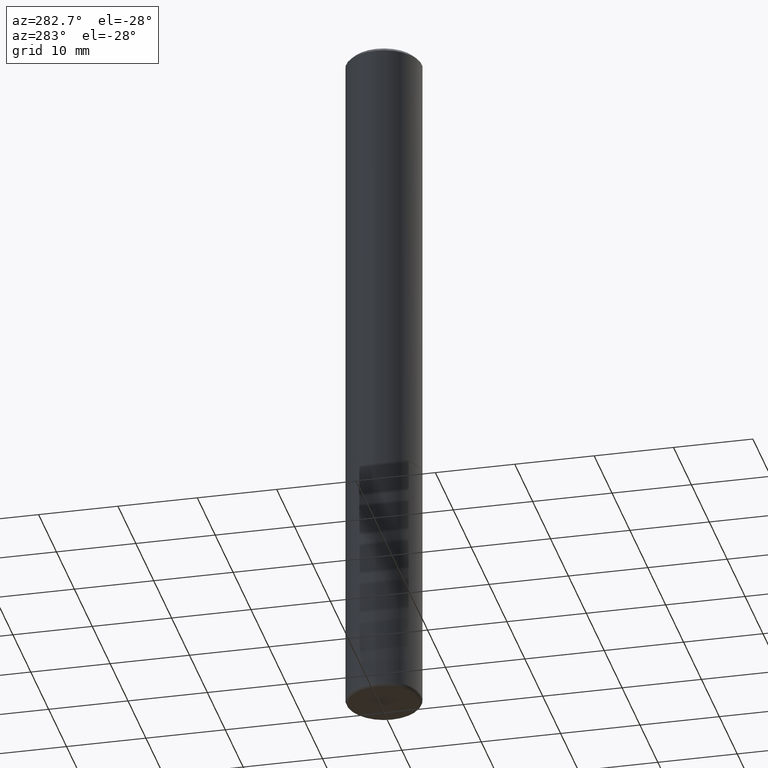
[diagram: clean part render]
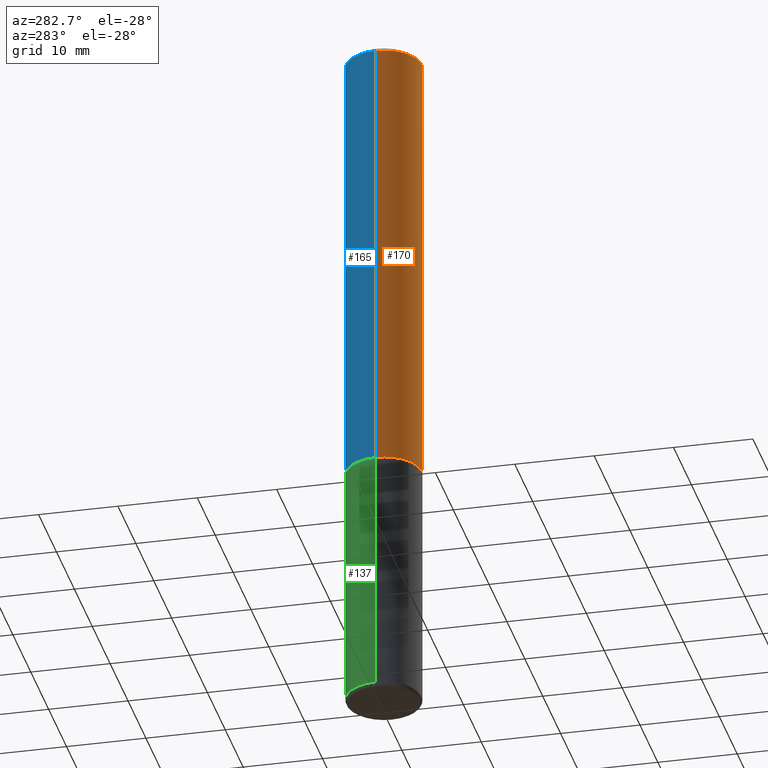
[diagram: same view with three faces highlighted in distinct colors, each labeled with its STEP entity id]
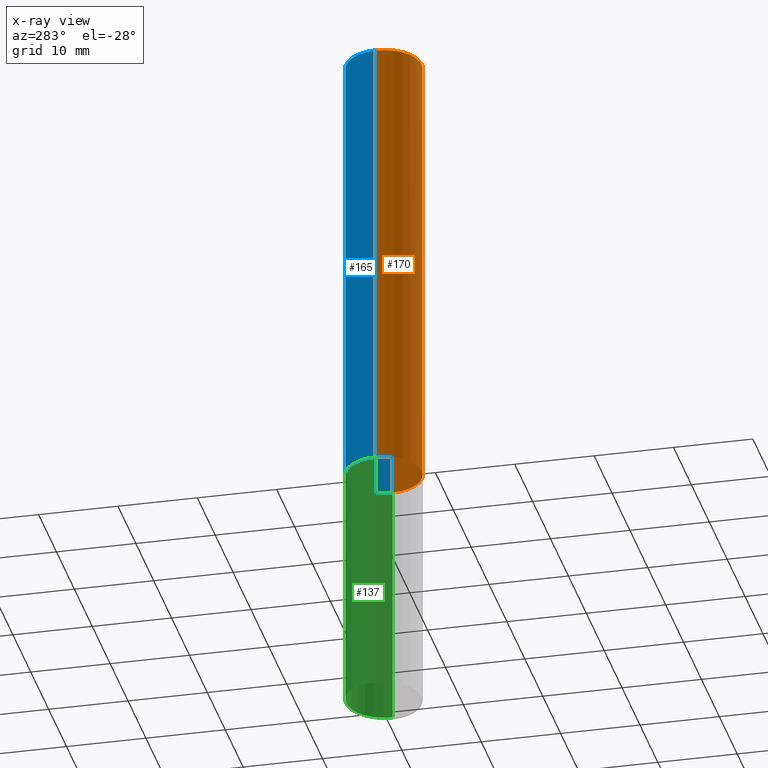
[diagram: x-ray of the same camera — body ghosted, the three highlighted faces saturated]
A machine part, auxiliary view with three faces highlighted in distinct colors.
The next image is the same camera in x-ray (body ghosted, the three faces saturated) — at least one of them is partly hidden behind the body in this view.
Their STEP definitions:

[orange] entity #170 — the highlighted cylindrical surface (partial cylindrical patch) has radius 4.7625 mm, axis along (-0, 0, 1).
#23 = LINE ( 'NONE', #268, #202 ) ;
#28 = DIRECTION ( 'NONE',  ( -2.445468806185136597E-29, 3.491481338843145583E-15, 1.000000000000000000 ) ) ;
#35 = VERTEX_POINT ( 'NONE', #175 ) ;
#39 = DIRECTION ( 'NONE',  ( 1.000000000000000000, -6.982962677686267499E-15, 4.876176775795935232E-29 ) ) ;
#69 = ORIENTED_EDGE ( 'NONE', *, *, #148, .T. ) ;
#92 = DIRECTION ( 'NONE',  ( -2.445468806185136877E-29, 3.491481338843145188E-15, 1.000000000000000000 ) ) ;
#117 = FACE_OUTER_BOUND ( 'NONE', #303, .T. ) ;
#119 = CARTESIAN_POINT ( 'NONE',  ( 0.000000000000000000, 0.000000000000000000, 0.000000000000000000 ) ) ;
#120 = ORIENTED_EDGE ( 'NONE', *, *, #158, .T. ) ;
#126 = ORIENTED_EDGE ( 'NONE', *, *, #293, .F. ) ;
#127 = EDGE_CURVE ( 'NONE', #147, #319, #178, .T. ) ;
#147 = VERTEX_POINT ( 'NONE', #439 ) ;
#148 = EDGE_CURVE ( 'NONE', #35, #284, #357, .T. ) ;
#158 = EDGE_CURVE ( 'NONE', #284, #319, #23, .T. ) ;
#170 = ADVANCED_FACE ( 'NONE', ( #117 ), #277, .T. ) ;
#175 = CARTESIAN_POINT ( 'NONE',  ( -0.1875000000000000278, -2.628817949367352449E-15, -2.248999999999999666 ) ) ;
#178 = CIRCLE ( 'NONE', #264, 0.1874999999999993061 ) ;
#201 = CARTESIAN_POINT ( 'NONE',  ( -0.1874999999999996392, 1.332267629550185285E-15, -9.223003294227931175E-30 ) ) ;
#202 = VECTOR ( 'NONE', #92, 39.37007874015748143 ) ;
#245 = AXIS2_PLACEMENT_3D ( 'NONE', #119, #455, #39 ) ;
#247 = DIRECTION ( 'NONE',  ( -2.445468806185136877E-29, 3.491481338843145188E-15, 1.000000000000000000 ) ) ;
#264 = AXIS2_PLACEMENT_3D ( 'NONE', #490, #449, #408 ) ;
#268 = CARTESIAN_POINT ( 'NONE',  ( 0.1874999999999996392, -1.309305502066172642E-15, 9.142831454617361395E-30 ) ) ;
#275 = CARTESIAN_POINT ( 'NONE',  ( 5.499859345110371740E-29, -7.852341531058233864E-15, -2.248999999999999666 ) ) ;
#277 = CYLINDRICAL_SURFACE ( 'NONE', #245, 0.1874999999999996392 ) ;
#284 = VERTEX_POINT ( 'NONE', #379 ) ;
#293 = EDGE_CURVE ( 'NONE', #35, #147, #380, .T. ) ;
#303 = EDGE_LOOP ( 'NONE', ( #126, #69, #120, #482 ) ) ;
#319 = VERTEX_POINT ( 'NONE', #492 ) ;
#357 = CIRCLE ( 'NONE', #425, 0.1875000000000000278 ) ;
#379 = CARTESIAN_POINT ( 'NONE',  ( 0.1875000000000000278, -9.161647033124408872E-15, -2.248999999999999666 ) ) ;
#380 = LINE ( 'NONE', #201, #447 ) ;
#408 = DIRECTION ( 'NONE',  ( 1.000000000000000000, -6.982962677686265922E-15, 0.000000000000000000 ) ) ;
#425 = AXIS2_PLACEMENT_3D ( 'NONE', #275, #28, #445 ) ;
#439 = CARTESIAN_POINT ( 'NONE',  ( -0.1874999999999993061, 1.239475875289307174E-15, -0.02000000000000007327 ) ) ;
#445 = DIRECTION ( 'NONE',  ( 1.000000000000000000, -6.982962677686266711E-15, 0.000000000000000000 ) ) ;
#447 = VECTOR ( 'NONE', #247, 39.37007874015748143 ) ;
#449 = DIRECTION ( 'NONE',  ( -2.445468806185136597E-29, 3.491481338843145583E-15, 1.000000000000000000 ) ) ;
#455 = DIRECTION ( 'NONE',  ( -2.445468806185136597E-29, 3.491481338843145583E-15, 1.000000000000000000 ) ) ;
#482 = ORIENTED_EDGE ( 'NONE', *, *, #127, .F. ) ;
#490 = CARTESIAN_POINT ( 'NONE',  ( 4.890937612370290675E-31, -6.982962677686316261E-17, -0.02000000000000007327 ) ) ;
#492 = CARTESIAN_POINT ( 'NONE',  ( 0.1874999999999993061, -1.356173001359020339E-15, -0.02000000000000007327 ) ) ;

[blue] entity #165 — the highlighted cylindrical surface (partial cylindrical patch) has radius 4.7625 mm, axis along (-0, 0, 1).
#23 = LINE ( 'NONE', #268, #202 ) ;
#35 = VERTEX_POINT ( 'NONE', #175 ) ;
#36 = AXIS2_PLACEMENT_3D ( 'NONE', #297, #394, #437 ) ;
#48 = ORIENTED_EDGE ( 'NONE', *, *, #104, .F. ) ;
#65 = DIRECTION ( 'NONE',  ( 1.000000000000000000, -6.982962677686265922E-15, 0.000000000000000000 ) ) ;
#75 = CIRCLE ( 'NONE', #462, 0.1875000000000000278 ) ;
#92 = DIRECTION ( 'NONE',  ( -2.445468806185136877E-29, 3.491481338843145188E-15, 1.000000000000000000 ) ) ;
#100 = ORIENTED_EDGE ( 'NONE', *, *, #479, .T. ) ;
#104 = EDGE_CURVE ( 'NONE', #319, #147, #196, .T. ) ;
#128 = FACE_OUTER_BOUND ( 'NONE', #259, .T. ) ;
#147 = VERTEX_POINT ( 'NONE', #439 ) ;
#158 = EDGE_CURVE ( 'NONE', #284, #319, #23, .T. ) ;
#165 = ADVANCED_FACE ( 'NONE', ( #128 ), #435, .T. ) ;
#168 = CARTESIAN_POINT ( 'NONE',  ( 5.499859345110371740E-29, -7.852341531058233864E-15, -2.248999999999999666 ) ) ;
#175 = CARTESIAN_POINT ( 'NONE',  ( -0.1875000000000000278, -2.628817949367352449E-15, -2.248999999999999666 ) ) ;
#196 = CIRCLE ( 'NONE', #463, 0.1874999999999993061 ) ;
#201 = CARTESIAN_POINT ( 'NONE',  ( -0.1874999999999996392, 1.332267629550185285E-15, -9.223003294227931175E-30 ) ) ;
#202 = VECTOR ( 'NONE', #92, 39.37007874015748143 ) ;
#247 = DIRECTION ( 'NONE',  ( -2.445468806185136877E-29, 3.491481338843145188E-15, 1.000000000000000000 ) ) ;
#259 = EDGE_LOOP ( 'NONE', ( #100, #444, #48, #457 ) ) ;
#268 = CARTESIAN_POINT ( 'NONE',  ( 0.1874999999999996392, -1.309305502066172642E-15, 9.142831454617361395E-30 ) ) ;
#284 = VERTEX_POINT ( 'NONE', #379 ) ;
#290 = DIRECTION ( 'NONE',  ( 1.000000000000000000, -6.982962677686266711E-15, 0.000000000000000000 ) ) ;
#293 = EDGE_CURVE ( 'NONE', #35, #147, #380, .T. ) ;
#297 = CARTESIAN_POINT ( 'NONE',  ( 0.000000000000000000, 0.000000000000000000, 0.000000000000000000 ) ) ;
#319 = VERTEX_POINT ( 'NONE', #492 ) ;
#325 = DIRECTION ( 'NONE',  ( -2.445468806185136597E-29, 3.491481338843145583E-15, 1.000000000000000000 ) ) ;
#341 = CARTESIAN_POINT ( 'NONE',  ( 4.890937612370290675E-31, -6.982962677686316261E-17, -0.02000000000000007327 ) ) ;
#379 = CARTESIAN_POINT ( 'NONE',  ( 0.1875000000000000278, -9.161647033124408872E-15, -2.248999999999999666 ) ) ;
#380 = LINE ( 'NONE', #201, #447 ) ;
#394 = DIRECTION ( 'NONE',  ( -2.445468806185136597E-29, 3.491481338843145583E-15, 1.000000000000000000 ) ) ;
#435 = CYLINDRICAL_SURFACE ( 'NONE', #36, 0.1874999999999996392 ) ;
#437 = DIRECTION ( 'NONE',  ( 1.000000000000000000, -6.982962677686267499E-15, 4.876176775795935232E-29 ) ) ;
#439 = CARTESIAN_POINT ( 'NONE',  ( -0.1874999999999993061, 1.239475875289307174E-15, -0.02000000000000007327 ) ) ;
#444 = ORIENTED_EDGE ( 'NONE', *, *, #293, .T. ) ;
#447 = VECTOR ( 'NONE', #247, 39.37007874015748143 ) ;
#457 = ORIENTED_EDGE ( 'NONE', *, *, #158, .F. ) ;
#462 = AXIS2_PLACEMENT_3D ( 'NONE', #168, #325, #290 ) ;
#463 = AXIS2_PLACEMENT_3D ( 'NONE', #341, #484, #65 ) ;
#479 = EDGE_CURVE ( 'NONE', #284, #35, #75, .T. ) ;
#484 = DIRECTION ( 'NONE',  ( -2.445468806185136597E-29, 3.491481338843145583E-15, 1.000000000000000000 ) ) ;
#492 = CARTESIAN_POINT ( 'NONE',  ( 0.1874999999999993061, -1.356173001359020339E-15, -0.02000000000000007327 ) ) ;

[green] entity #137 — the highlighted cylindrical surface (partial cylindrical patch) has radius 4.7625 mm, axis along (-0, 0, 1).
#1 = DIRECTION ( 'NONE',  ( -2.445468806185136877E-29, 3.491481338843145188E-15, 1.000000000000000000 ) ) ;
#31 = ORIENTED_EDGE ( 'NONE', *, *, #227, .F. ) ;
#42 = CARTESIAN_POINT ( 'NONE',  ( -0.1875000000000000278, -8.670827735684531822E-15, -2.249999999999999556 ) ) ;
#43 = CARTESIAN_POINT ( 'NONE',  ( 0.1874999999999999722, -1.309305502066174811E-15, 9.142831454617378210E-30 ) ) ;
#45 = ORIENTED_EDGE ( 'NONE', *, *, #346, .T. ) ;
#51 = DIRECTION ( 'NONE',  ( 1.000000000000000000, -6.982962677686261189E-15, 0.000000000000000000 ) ) ;
#87 = DIRECTION ( 'NONE',  ( -2.445468806185136597E-29, 3.491481338843145583E-15, 1.000000000000000000 ) ) ;
#102 = FACE_OUTER_BOUND ( 'NONE', #257, .T. ) ;
#132 = DIRECTION ( 'NONE',  ( -2.445468806185136597E-29, 3.491481338843145583E-15, 1.000000000000000000 ) ) ;
#137 = ADVANCED_FACE ( 'NONE', ( #102 ), #410, .T. ) ;
#143 = CIRCLE ( 'NONE', #312, 0.1875000000000000278 ) ;
#169 = VECTOR ( 'NONE', #1, 39.37007874015748143 ) ;
#173 = CARTESIAN_POINT ( 'NONE',  ( -0.1874999999999999722, 1.332267629550187651E-15, -9.223003294227946589E-30 ) ) ;
#174 = VERTEX_POINT ( 'NONE', #458 ) ;
#187 = CIRCLE ( 'NONE', #440, 0.1874999999999999722 ) ;
#224 = DIRECTION ( 'NONE',  ( 1.000000000000000000, -6.982962677686266711E-15, 4.876176775795935793E-29 ) ) ;
#227 = EDGE_CURVE ( 'NONE', #281, #174, #348, .T. ) ;
#230 = ORIENTED_EDGE ( 'NONE', *, *, #487, .T. ) ;
#251 = LINE ( 'NONE', #173, #351 ) ;
#256 = CARTESIAN_POINT ( 'NONE',  ( 8.510233307843451119E-29, -1.215035771807236405E-14, -3.480000761538716514 ) ) ;
#257 = EDGE_LOOP ( 'NONE', ( #45, #230, #305, #31 ) ) ;
#276 = VERTEX_POINT ( 'NONE', #42 ) ;
#281 = VERTEX_POINT ( 'NONE', #318 ) ;
#294 = VERTEX_POINT ( 'NONE', #377 ) ;
#299 = DIRECTION ( 'NONE',  ( 1.000000000000000000, -6.982962677686263555E-15, 0.000000000000000000 ) ) ;
#301 = AXIS2_PLACEMENT_3D ( 'NONE', #376, #477, #224 ) ;
#305 = ORIENTED_EDGE ( 'NONE', *, *, #354, .F. ) ;
#312 = AXIS2_PLACEMENT_3D ( 'NONE', #468, #87, #51 ) ;
#318 = CARTESIAN_POINT ( 'NONE',  ( 0.1874999999999999722, -1.345966322013853748E-14, -3.480000761538716514 ) ) ;
#346 = EDGE_CURVE ( 'NONE', #281, #294, #187, .T. ) ;
#348 = LINE ( 'NONE', #43, #169 ) ;
#351 = VECTOR ( 'NONE', #430, 39.37007874015748143 ) ;
#354 = EDGE_CURVE ( 'NONE', #174, #276, #143, .T. ) ;
#376 = CARTESIAN_POINT ( 'NONE',  ( 0.000000000000000000, 0.000000000000000000, 0.000000000000000000 ) ) ;
#377 = CARTESIAN_POINT ( 'NONE',  ( -0.1874999999999999722, -8.670827735684531822E-15, -3.480000761538716514 ) ) ;
#410 = CYLINDRICAL_SURFACE ( 'NONE', #301, 0.1874999999999999722 ) ;
#430 = DIRECTION ( 'NONE',  ( -2.445468806185136877E-29, 3.491481338843145188E-15, 1.000000000000000000 ) ) ;
#440 = AXIS2_PLACEMENT_3D ( 'NONE', #256, #132, #299 ) ;
#458 = CARTESIAN_POINT ( 'NONE',  ( 0.1875000000000000278, -9.165138514463251879E-15, -2.249999999999999556 ) ) ;
#468 = CARTESIAN_POINT ( 'NONE',  ( 5.502304813916556222E-29, -7.855833012397076871E-15, -2.249999999999999556 ) ) ;
#477 = DIRECTION ( 'NONE',  ( -2.445468806185136597E-29, 3.491481338843145583E-15, 1.000000000000000000 ) ) ;
#487 = EDGE_CURVE ( 'NONE', #294, #276, #251, .T. ) ;